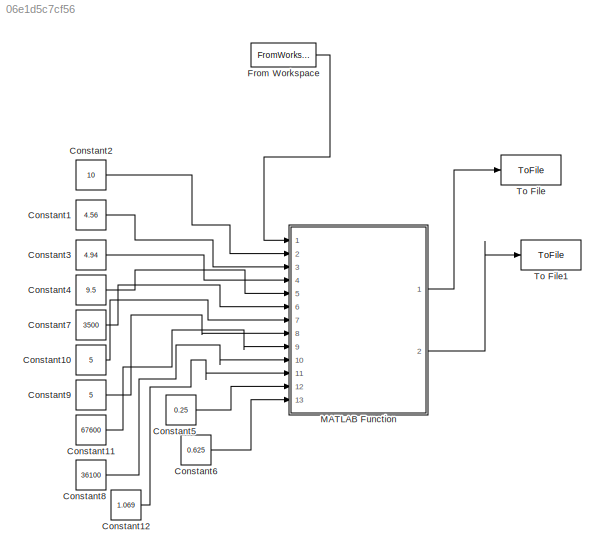
MODEL slx_06e1d5c7cf56
KIND model
CONFIG AbsTol = auto
CONFIG EnableMultiTasking = off
CONFIG FixedStep = auto
CONFIG MaxStep = auto
CONFIG MinStep = auto
CONFIG RelTol = 1e-3
CONFIG SampleTimeConstraint = Unconstrained
CONFIG SolverName = VariableStepAuto
CONFIG StartTime = 0.0
CONFIG StopTime = 10
BLOCK [Constant] Constant1
  Value = 4.56
BLOCK [Constant] Constant10
  Value = 5
BLOCK [Constant] Constant11
  Value = 67600
BLOCK [Constant] Constant12
  Value = 1.069
BLOCK [Constant] Constant2
  Value = 10
BLOCK [Constant] Constant3
  Value = 4.94
BLOCK [Constant] Constant4
  Value = 9.5
BLOCK [Constant] Constant5
  Value = 0.25
BLOCK [Constant] Constant6
  Value = 0.625
BLOCK [Constant] Constant7
  Value = 3500
BLOCK [Constant] Constant8
  Value = 36100
BLOCK [Constant] Constant9
  Value = 5
BLOCK [FromWorkspace] From Workspace
  OutDataTypeStr = double
  VariableName = Fy
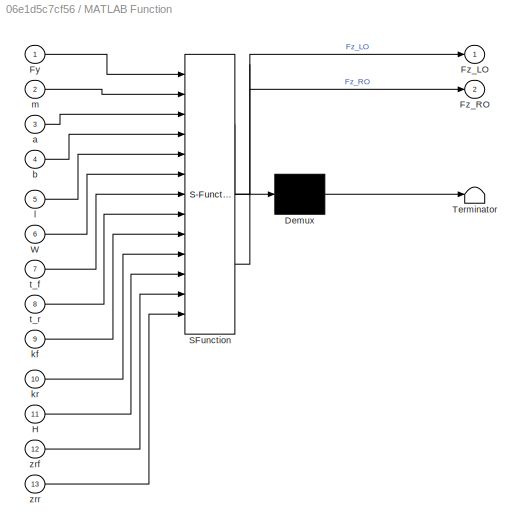
BLOCK [SubSystem] MATLAB Function
  ErrorFcn = Stateflow.Translate.translate
  PermitHierarchicalResolution = ExplicitOnly
  Ports = [13, 2]
  RequestExecContextInheritance = off
  SFBlockType = MATLAB Function
  TreatAsAtomicUnit = on
BLOCK [Demux] MATLAB Function/ Demux 
  Outputs = 1
  Ports = [1, 1]
BLOCK [S-Function] MATLAB Function/ SFunction 
  EnableBusSupport = on
  FunctionName = sf_sfun
  PortCounts = [13 3]
  Ports = [13, 3]
  SFcnIsStateOwnerBlock = off
  SFunctionDeploymentMode = off
  Tag = Stateflow S-Function 2
BLOCK [Terminator] MATLAB Function/ Terminator 
BLOCK [Inport] MATLAB Function/Fy
BLOCK [Outport] MATLAB Function/Fz_LO
BLOCK [Outport] MATLAB Function/Fz_RO
  Port = 2
BLOCK [Inport] MATLAB Function/H
  Port = 11
BLOCK [Inport] MATLAB Function/W
  Port = 6
BLOCK [Inport] MATLAB Function/a
  Port = 3
BLOCK [Inport] MATLAB Function/b
  Port = 4
BLOCK [Inport] MATLAB Function/kf
  Port = 9
BLOCK [Inport] MATLAB Function/kr
  Port = 10
BLOCK [Inport] MATLAB Function/l
  Port = 5
BLOCK [Inport] MATLAB Function/m
  Port = 2
BLOCK [Inport] MATLAB Function/t_f
  Port = 7
BLOCK [Inport] MATLAB Function/t_r
  Port = 8
BLOCK [Inport] MATLAB Function/zrf
  Port = 12
BLOCK [Inport] MATLAB Function/zrr
  Port = 13
BLOCK [ToFile] To File
  Filename = LeftT.mat
  MatrixName = FzL
  Ports = [1]
  SaveFormat = Timeseries
BLOCK [ToFile] To File1
  Filename = RightT
  MatrixName = FzR
  Ports = [1]
  SaveFormat = Timeseries
LINE Constant10:1 -> MATLAB Function:7
LINE Constant11:1 -> MATLAB Function:9
LINE Constant12:1 -> MATLAB Function:11
LINE Constant1:1 -> MATLAB Function:3
LINE Constant2:1 -> MATLAB Function:2
LINE Constant3:1 -> MATLAB Function:4
LINE Constant4:1 -> MATLAB Function:5
LINE Constant5:1 -> MATLAB Function:12
LINE Constant6:1 -> MATLAB Function:13
LINE Constant7:1 -> MATLAB Function:6
LINE Constant8:1 -> MATLAB Function:10
LINE Constant9:1 -> MATLAB Function:8
LINE From Workspace:1 -> MATLAB Function:1
LINE MATLAB Function:1 -> To File:1
LINE MATLAB Function:2 -> To File1:1
CHART MATLAB Function states=1 transitions=1
  STATE_LABEL 'eML_blk_kernel()'
  STATE_LABEL 'SCRIPT:\nfunction [Fz_LO,Fz_RO] = WT(Fy,m,a,b,l,W,t_f,t_r,kf,kr,H,zrf,zrr)\n%for i=1:length(Fy)\n %   if Fy(i) < 0\n  %      Fy(i) = abs(Fy(i));\n   % end\n%end\n%A_x = Fx/m;\nA_y = Fy/m;\nW_F = W * b/l;\n%value check for negitive input\nW_R = W * a/l;\ndelta_F = A_y * (W/t_f)*((H*kf)/(kf+kr) + (b/l) * zrf);\ndelta_R = A_y * (W/t_r)*((H*kr)/(kf+kr) + (a/l) * zrr);\nW_Fo = (W_F/2) + (delta_F); \nW_Fi = (W_F/2) - ...<+113ch>'
CHART  states=0 transitions=0
